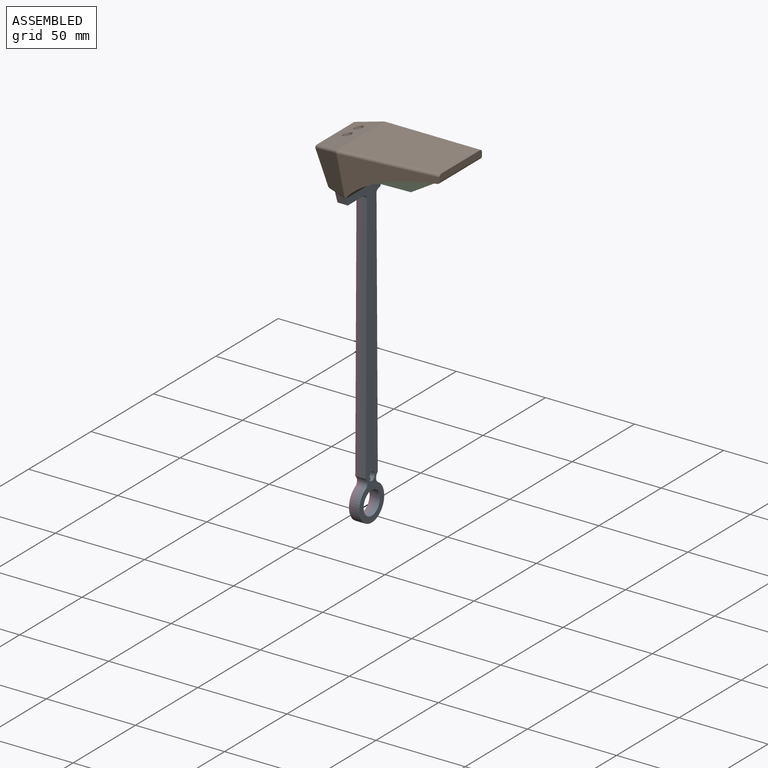
[diagram: assembled view]
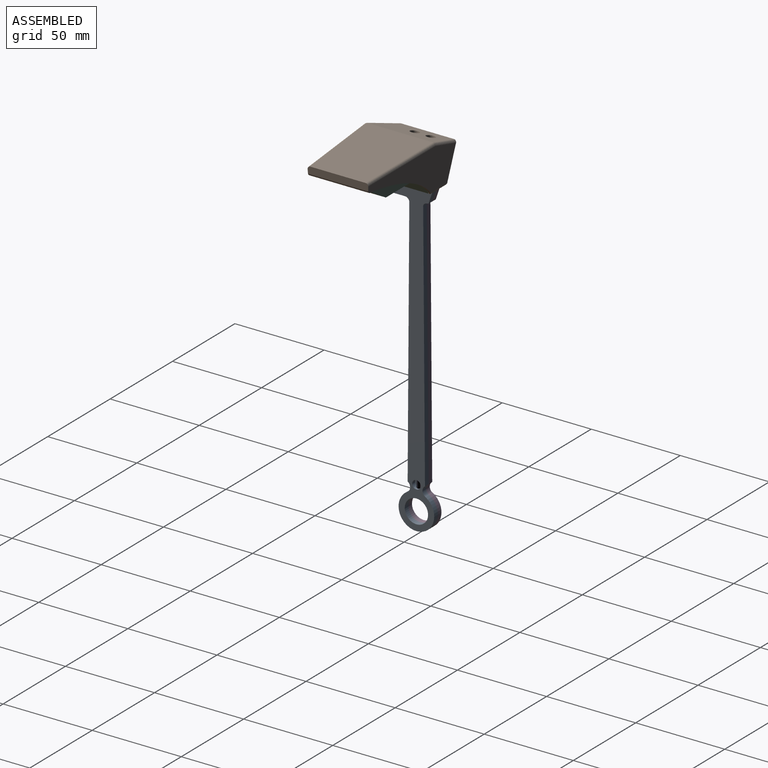
[diagram: assembled view, second angle]
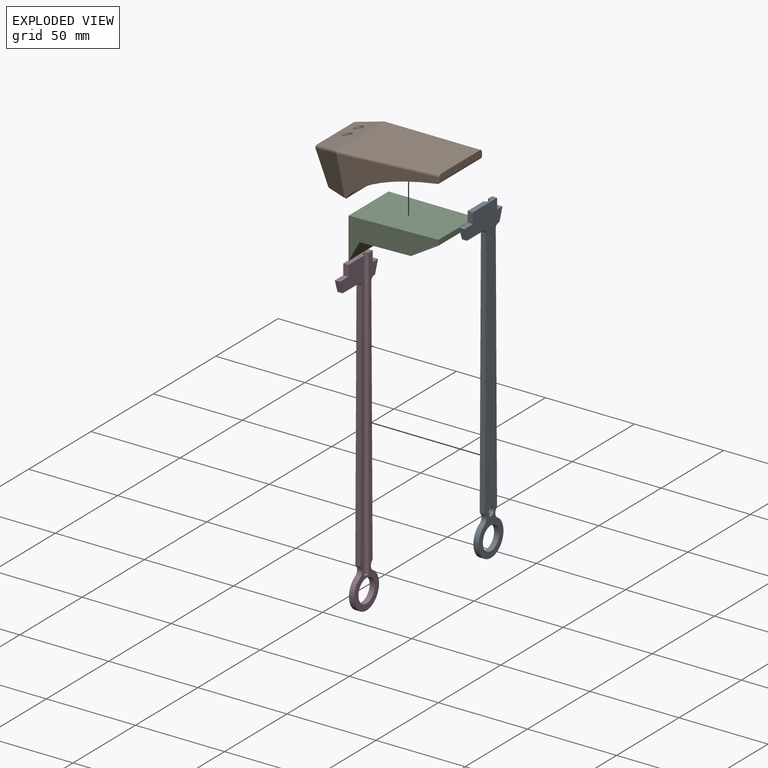
[diagram: exploded view]
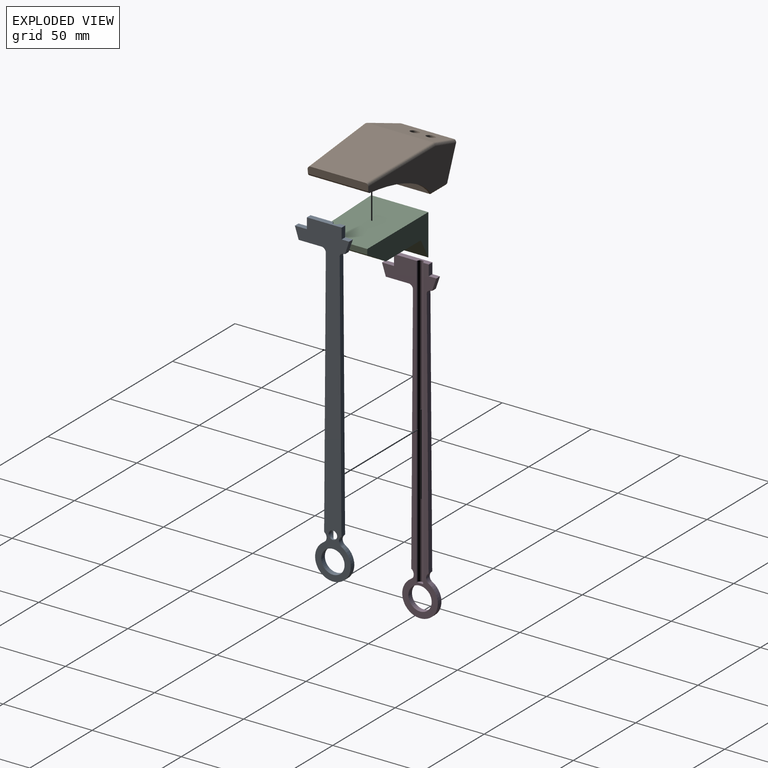
[diagram: exploded view, second angle]
ASSEMBLY  parts=4 mates=3
PART A: 23 faces, bbox 31.3x2.9x180.8 mm
  f0: cylinder r=1.75mm len=163mm, axis (0,0,1), area 876.7mm2, adj f1,f2,f19,f20,f21,f22
  f1: plane 3.5x1.75mm, normal (0,0,1), area 4.8mm2, adj f0,f19
  f2: plane 19.5x2.9mm, normal (0,0,1), area 51.7mm2, adj f0,f16,f17,f18,f19
  f3: cylinder r=6.55mm len=13.1mm, axis (0,1,0), area 119.3mm2, adj f18,f19
  f4: extruded ~3x2.9mm, area 11.4mm2, adj f5,f15,f18,f19
  f5: plane 142x2.9mm, normal (-1,0,0.01), area 411.8mm2, adj f4,f6,f18,f19
  f6: cylinder r=3.13mm len=5.41mm, axis (0,1,0), area 19mm2, adj f5,f7,f18,f19
  f7: cylinder r=10mm len=20mm, axis (0,1,0), area 149.3mm2, adj f6,f8,f18,f19
  f8: cylinder r=3.17mm len=5.56mm, axis (0,1,0), area 19.9mm2, adj f7,f9,f18,f19
  f9: plane 141.6x2.9mm, normal (1,0,0.01), area 410.7mm2, adj f8,f10,f18,f19
  f10: cylinder r=2.46mm len=2.9mm, axis (0,1,0), area 12.5mm2, adj f9,f11,f18,f19
  f11: plane 12.57x2.9mm, normal (0,0,-1), area 36.5mm2, adj f10,f12,f18,f19
  f12: plane 6.64x2.9mm, normal (0.95,0,-0.31), area 20.2mm2, adj f11,f13,f18,f19
  f13: plane 6.75x2.9mm, normal (0,0,1), area 19.6mm2, adj f12,f16,f18,f19
  f14: plane 4.25x2.9mm, normal (0,0,1), area 12.3mm2, adj f15,f17,f18,f19
  f15: plane 6.93x2.9mm, normal (-0.95,0,-0.32), area 21.2mm2, adj f4,f14,f18,f19
  f16: plane 6x2.9mm, normal (1,0,0), area 17.4mm2, adj f2,f13,f18,f19
  f17: plane 6x2.9mm, normal (-1,0,0), area 17.4mm2, adj f2,f14,f18,f19
  f18: plane 180.81x31.34mm, normal (0,1,0), area 1763.3mm2, adj f2,f3,f4,f5,f6,f7,f8,f9
  f19: plane 180.81x31.34mm, normal (0,-1,0), area 1210.5mm2, adj f0,f1,f2,f3,f4,f5,f6,f7
  f20: plane 3.29x0.66mm, normal (0,1,0), area 1.5mm2, adj f0,f22
  f21: plane 3.33x0.68mm, normal (0,1,0), area 1.6mm2, adj f0,f22
  f22: cylinder r=2.38mm len=4.75mm, axis (0,1,0), area 30mm2, adj f0,f18,f20,f21
PART B: 50 faces, bbox 71.8x39.9x25.1 mm
  f0: cylinder r=2.5mm len=5.47mm, axis (-0.27,0,0.96), area 37.2mm2, adj f8,f48
  f1: cylinder r=2.5mm len=5.47mm, axis (-0.27,0,0.96), area 37.2mm2, adj f8,f46
  f2: plane 32.92x12mm, normal (0.24,0,-0.97), area 294.9mm2, adj f14,f18,f19,f40,f45,f47,f49
  f3: cylinder r=1.5mm len=13.2mm, axis (-1,0,0), area 29.3mm2, adj f6,f7,f10,f13,f22,f40
  f4: plane 53.8x36.78mm, normal (0,0,1), area 1824.6mm2, adj f5,f25,f32,f36,f38
  f5: plane 34.13x3.73mm, normal (1,0,0), area 123mm2, adj f4,f10,f12,f25,f38,f39
  f6: extruded ~49.66x37.05mm, area 244.1mm2, adj f3,f7,f10,f12,f14,f15,f33,f39
  f7: plane 34.12x11.98mm, normal (0,0,-1), area 260.1mm2, adj f3,f6,f13,f26,f33,f41,f42,f43
  f8: plane 36.69x16.19mm, normal (-0.27,0,0.96), area 516.6mm2, adj f0,f1,f23,f24,f31,f32
  f9: plane 29.46x17.5mm, normal (-0.93,0,-0.37), area 554.1mm2, adj f20,f23,f26,f27
  f10: plane 69.99x23.5mm, normal (0,1,0), area 816mm2, adj f3,f5,f6,f20,f24,f25,f39
  f11: plane 22x19.04mm, normal (-0.37,-0.92,-0.15), area 318.4mm2, adj f27,f31,f33,f35,f36
  f12: plane 53.54x22.94mm, normal (0.11,-0.99,-0.11), area 518.7mm2, adj f5,f6,f33,f35,f38,f39
  f13: plane 32.73x6mm, normal (1,0,0), area 196.4mm2, adj f3,f7,f14,f17,f40
  f14: plane 53.6x23mm, normal (-0.04,1,0), area 536.3mm2, adj f2,f6,f13,f15,f16,f17,f19,f45
  f15: plane 30.73x3.21mm, normal (-1,0,0), area 98.7mm2, adj f6,f14,f16,f40
  f16: plane 49x32.73mm, normal (0,0,-1), area 1554.9mm2, adj f14,f15,f40,f45
  f17: plane 32.92x12mm, normal (0,0,1), area 251.8mm2, adj f13,f14,f18,f19,f40,f41,f42,f43
  f18: plane 26.75x11mm, normal (0.94,0,0.34), area 293.6mm2, adj f2,f17,f19,f40
  f19: plane 13.85x11.41mm, normal (0.64,0.77,0), area 155.8mm2, adj f2,f14,f17,f18
  f20: cylinder r=1.5mm len=18.06mm, axis (0.37,0,-0.93), area 44.4mm2, adj f9,f10,f21,f22
  f21: sphere r=1.5mm, area 3.6mm2, adj f20,f23,f24
  f22: sphere r=1.5mm, area 2.9mm2, adj f3,f20,f26
  f23: cylinder r=1.5mm len=29.46mm, axis (0,-1,0), area 74.3mm2, adj f8,f9,f21,f28
  f24: cylinder r=1.5mm len=16.59mm, axis (0.96,0,0.27), area 39.6mm2, adj f8,f10,f21,f29
  f25: cylinder r=1.5mm len=53.8mm, axis (1,0,0), area 126.8mm2, adj f4,f5,f10,f29
  f26: cylinder r=1.5mm len=29.32mm, axis (0,1,0), area 52.4mm2, adj f7,f9,f22,f30
  f27: cylinder r=1.5mm len=17.83mm, axis (0.37,0.01,-0.93), area 32.8mm2, adj f9,f11,f28,f30
  f28: sphere r=1.5mm, area 2mm2, adj f23,f27,f31
  f29: sphere r=1.5mm, area 0.6mm2, adj f24,f25,f32
  f30: sphere r=1.5mm, area 2mm2, adj f26,f27,f33
  f31: cylinder r=1.5mm len=16.49mm, axis (0.89,-0.4,0.25), area 44.5mm2, adj f8,f11,f28,f34
  f32: cylinder r=1.5mm len=36.69mm, axis (0,-1,0), area 14.9mm2, adj f4,f8,f29,f34
  f33: cylinder r=1.5mm len=13.38mm, axis (-0.93,0.37,0), area 28.4mm2, adj f6,f7,f11,f12,f30,f35
  f34: sphere r=1.5mm, area 0.6mm2, adj f31,f32,f36
  f35: cylinder r=1.5mm len=22.81mm, axis (-0.12,-0.12,0.99), area 16.5mm2, adj f11,f12,f33,f37
  f36: cylinder r=1.5mm len=1.73mm, axis (0.93,-0.37,0), area 0.6mm2, adj f4,f11,f34,f37
  f37: sphere r=1.5mm, area 1.2mm2, adj f35,f36,f38
  f38: cylinder r=1.5mm len=53.75mm, axis (0.99,0.11,0), area 135.4mm2, adj f4,f5,f12,f37
  f39: cylinder r=1.5mm len=33.82mm, axis (0,-1,0), area 74.2mm2, adj f5,f6,f10,f12
  f40: plane 67x23mm, normal (0,-1,0), area 655.6mm2, adj f2,f3,f6,f13,f15,f16,f17,f18
  f41: plane 20x6mm, normal (1,0,0), area 120mm2, adj f7,f17,f42,f44
  f42: plane 6x6mm, normal (0,-1,0), area 36mm2, adj f7,f17,f41,f43
  f43: plane 20x6mm, normal (-1,0,0), area 120mm2, adj f7,f17,f42,f44
  f44: plane 6x6mm, normal (0,1,0), area 36mm2, adj f7,f17,f41,f43
  f45: plane 32.9x4mm, normal (0.6,0,-0.8), area 164.1mm2, adj f2,f14,f16,f40
  f46: plane 6.03x5.85mm, normal (0.24,0,-0.97), area 8.6mm2, adj f1,f47
  f47: cylinder r=3mm len=6.31mm, axis (0.24,0,-0.97), area 37.7mm2, adj f2,f46
  f48: plane 6.03x5.85mm, normal (0.24,0,-0.97), area 8.6mm2, adj f0,f49
  f49: cylinder r=3mm len=6.31mm, axis (0.24,0,-0.97), area 37.7mm2, adj f2,f48
PART C: 14 faces, bbox 49x32.1x23 mm
  f0: plane 49x23mm, normal (0,1,0), area 553.5mm2, adj f1,f2,f3,f4,f5,f6
  f1: plane 32.1x23mm, normal (-1,0,0), area 728.9mm2, adj f0,f3,f5,f7,f8,f9,f10
  f2: plane 30x3mm, normal (1,0,0), area 90mm2, adj f0,f3,f6,f7
  f3: plane 49x32.1mm, normal (0,0,1), area 1521.4mm2, adj f0,f1,f2,f7
  f4: plane 31.84x28mm, normal (0,0,-1), area 874.8mm2, adj f0,f5,f6,f7
  f5: plane 32.1x11mm, normal (0.88,0,-0.48), area 400.6mm2, adj f0,f1,f4,f7
  f6: plane 30.64x15mm, normal (0.51,0,-0.86), area 530.4mm2, adj f0,f2,f4,f7
  f7: plane 49x23mm, normal (0.04,-1,0), area 554mm2, adj f1,f2,f3,f4,f5,f6
  f8: cylinder r=1mm len=28mm, axis (-1,0,0), area 175.9mm2, adj f1,f11
  f9: cylinder r=1mm len=28mm, axis (-1,0,0), area 175.9mm2, adj f1,f12
  f10: cylinder r=1mm len=28mm, axis (-1,0,0), area 175.9mm2, adj f1,f13
  f11: sphere r=1mm, area 6.3mm2, adj f8
  f12: sphere r=1mm, area 6.3mm2, adj f9
  f13: sphere r=1mm, area 6.3mm2, adj f10
PART D: 20 faces, bbox 31.3x2.9x180.8 mm
  f0: cylinder r=6.55mm len=13.1mm, axis (0,1,0), area 119.3mm2, adj f1,f19
  f1: plane 180.81x31.34mm, normal (0,-1,0), area 1781mm2, adj f0,f3,f4,f5,f6,f7,f8,f9
  f2: plane 3.5x1.75mm, normal (0,0,1), area 4.8mm2, adj f18,f19
  f3: plane 6x2.9mm, normal (1,0,0), area 17.4mm2, adj f1,f4,f17,f19
  f4: plane 6.75x2.9mm, normal (0,0,1), area 19.6mm2, adj f1,f3,f5,f19
  f5: plane 6.64x2.9mm, normal (0.95,0,-0.31), area 20.2mm2, adj f1,f4,f6,f19
  f6: plane 12.57x2.9mm, normal (0,0,-1), area 36.5mm2, adj f1,f5,f7,f19
  f7: cylinder r=2.46mm len=2.9mm, axis (0,1,0), area 12.5mm2, adj f1,f6,f8,f19
  f8: plane 141.6x2.9mm, normal (1,0,0.01), area 410.7mm2, adj f1,f7,f9,f19
  f9: cylinder r=3.17mm len=5.56mm, axis (0,1,0), area 19.9mm2, adj f1,f8,f10,f19
  f10: cylinder r=10mm len=20mm, axis (0,1,0), area 149.3mm2, adj f1,f9,f11,f19
  f11: cylinder r=3.13mm len=5.41mm, axis (0,1,0), area 19mm2, adj f1,f10,f12,f19
  f12: plane 142x2.9mm, normal (-1,0,0.01), area 411.8mm2, adj f1,f11,f16,f19
  f13: plane 6x2.9mm, normal (-1,0,0), area 17.4mm2, adj f1,f15,f17,f19
  f14: plane 6.93x2.9mm, normal (-0.95,0,-0.32), area 21.2mm2, adj f1,f15,f16,f19
  f15: plane 4.25x2.9mm, normal (0,0,1), area 12.3mm2, adj f1,f13,f14,f19
  f16: extruded ~3x2.9mm, area 11.4mm2, adj f1,f12,f14,f19
  f17: plane 19.5x2.9mm, normal (0,0,1), area 51.7mm2, adj f1,f3,f13,f18,f19
  f18: cylinder r=1.75mm len=163mm, axis (0,0,1), area 896.1mm2, adj f2,f17,f19
  f19: plane 180.81x31.34mm, normal (0,1,0), area 1210.5mm2, adj f0,f2,f3,f4,f5,f6,f7,f8
PLACE A rot(axis=(0,0,-1),90deg) t=(-27.69,-31.15,-33.71)mm
PLACE B t=(-10,-1.52,0)mm
PLACE C at identity
PLACE D rot(axis=(0,0,-1),90deg) t=(-27.69,-31.15,-33.71)mm
MATE fastened D.f4 <-> B.f7  axis (0,0,1) through (-33.49,-7.02,0)mm
MATE fastened A.f19 <-> D.f19  axis (-1,0,0) through (-30.59,16.73,0)mm
MATE fastened B.f16 <-> C.f3  axis (0,0,-1) through (24.5,-13.5,23)mm
